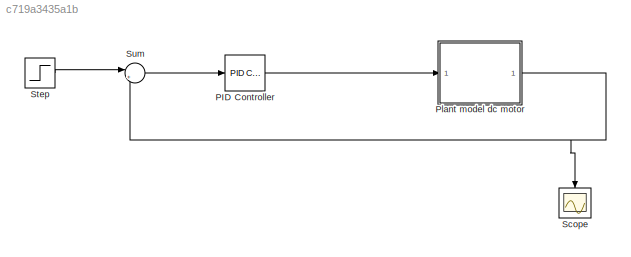
MODEL slx_c719a3435a1b
KIND model
CONFIG AbsTol = auto
CONFIG EnableMultiTasking = off
CONFIG FixedStep = auto
CONFIG MaxStep = auto
CONFIG MinStep = auto
CONFIG RelTol = 1e-3
CONFIG SampleTimeConstraint = Unconstrained
CONFIG SolverName = VariableStepAuto
CONFIG StartTime = 0.0
CONFIG StopTime = 3
BLOCK [Reference] PID Controller  REF=slpidlib/PID Controller
  LibrarySourceBlock = simulink/Continuous/PID Controller
  SourceBlock = slpidlib/PID Controller
  SourceType = PID 1dof
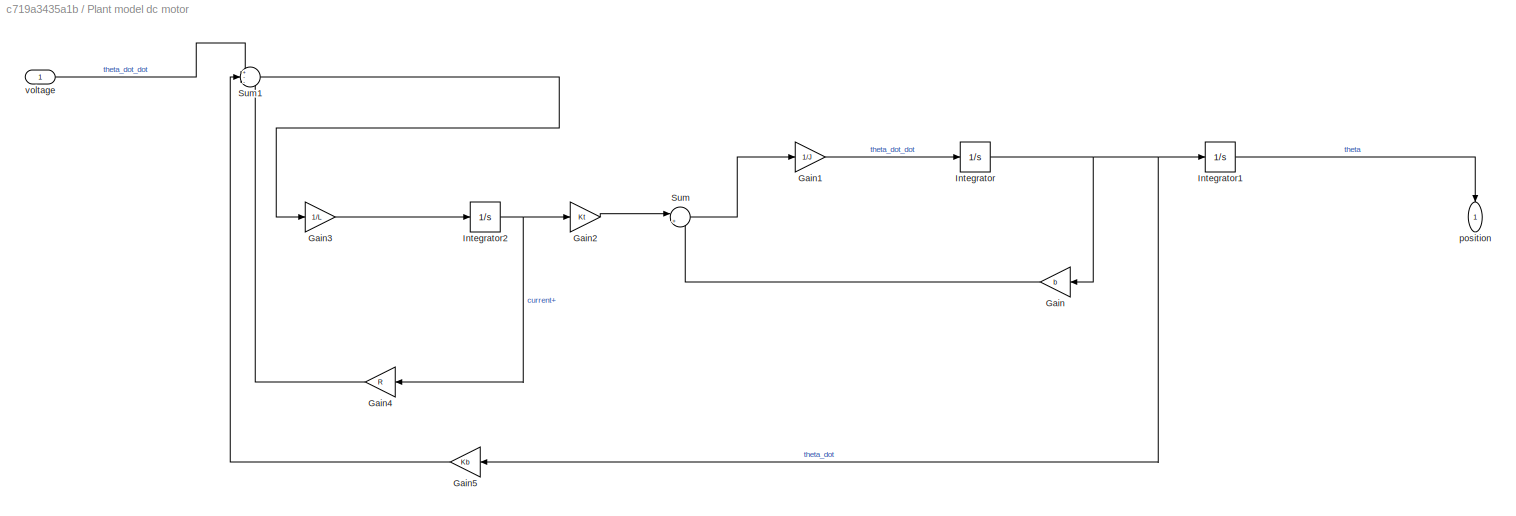
BLOCK [SubSystem] Plant model dc motor
BLOCK [Gain] Plant model dc motor/Gain
  Gain = b
  NameLocation = top
BLOCK [Gain] Plant model dc motor/Gain1
  Gain = 1/J
BLOCK [Gain] Plant model dc motor/Gain2
  Gain = Kt
BLOCK [Gain] Plant model dc motor/Gain3
  Gain = 1/L
BLOCK [Gain] Plant model dc motor/Gain4
  Gain = R
BLOCK [Gain] Plant model dc motor/Gain5
  Gain = Kb
BLOCK [Integrator] Plant model dc motor/Integrator
BLOCK [Integrator] Plant model dc motor/Integrator1
BLOCK [Integrator] Plant model dc motor/Integrator2
BLOCK [Sum] Plant model dc motor/Sum
  Inputs = |+-
BLOCK [Sum] Plant model dc motor/Sum1
  Inputs = +--
BLOCK [Outport] Plant model dc motor/position
  NameLocation = left
BLOCK [Inport] Plant model dc motor/voltage
BLOCK [Scope] Scope
  Floating = off
  NameLocation = left
  NumInputPorts = 1
  ScopeSpecificationString = Simulink.scopes.TimeScopeBlockCfg('CurrentConfiguration', extmgr.ConfigurationSet(extmgr.Configuration('Core','General UI',true),extmgr.Configuration('Core','Source UI',true),extmgr.Configuration('Sources','WiredSimulink',true,'DataLoggingMaxPoints','500000000'),extmgr.Configuration('Visuals','Time Domain',true,'SerializedDisplays',{struct('MinYLimReal','-0.12587','MaxYLimReal','1.13279','YLabelRe...<+1532ch>
BLOCK [Step] Step
  SampleTime = 0
BLOCK [Sum] Sum
  Inputs = |+-
LINE PID Controller:1 -> Plant model dc motor:1
LINE Plant model dc motor/Gain1:1 -> Plant model dc motor/Integrator:1
LINE Plant model dc motor/Gain2:1 -> Plant model dc motor/Sum:1
LINE Plant model dc motor/Gain3:1 -> Plant model dc motor/Integrator2:1
LINE Plant model dc motor/Gain4:1 -> Plant model dc motor/Sum1:3
LINE Plant model dc motor/Gain5:1 -> Plant model dc motor/Sum1:2
LINE Plant model dc motor/Gain:1 -> Plant model dc motor/Sum:2
LINE Plant model dc motor/Integrator1:1 -> Plant model dc motor/position:1
NET Plant model dc motor/Integrator2:1 -> Plant model dc motor/Gain2:1, Plant model dc motor/Gain4:1
NET Plant model dc motor/Integrator:1 -> Plant model dc motor/Gain5:1, Plant model dc motor/Gain:1, Plant model dc motor/Integrator1:1
LINE Plant model dc motor/Sum1:1 -> Plant model dc motor/Gain3:1
LINE Plant model dc motor/Sum:1 -> Plant model dc motor/Gain1:1
LINE Plant model dc motor/voltage:1 -> Plant model dc motor/Sum1:1
NET Plant model dc motor:1 -> Scope:1, Sum:2
LINE Step:1 -> Sum:1
LINE Sum:1 -> PID Controller:1
note: NET lines group one-source signal fan-out (src -> all destinations, sorted); 1:1 wires keep LINE
